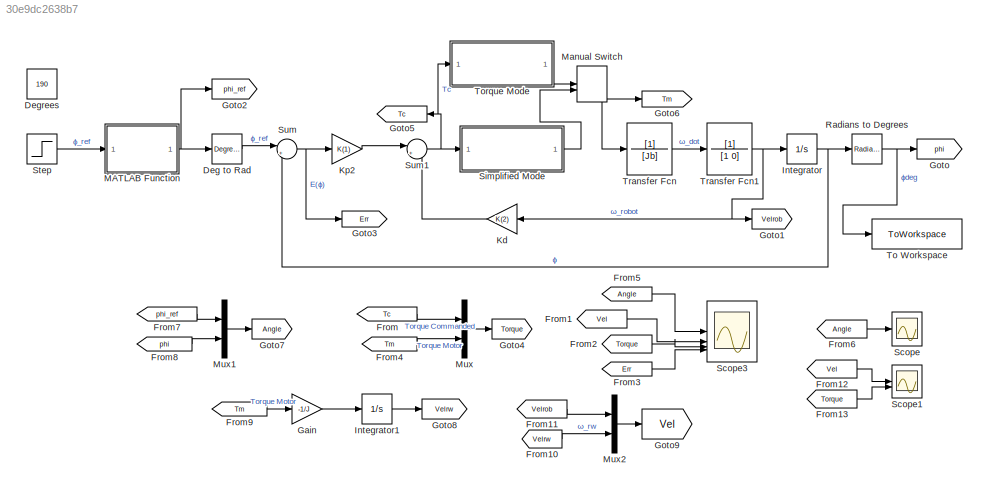
MODEL slx_30e9dc2638b7
KIND model
CONFIG AbsTol = auto
CONFIG EnableMultiTasking = off
CONFIG FixedStep = auto
CONFIG MaxStep = auto
CONFIG MinStep = auto
CONFIG RelTol = 1e-3
CONFIG SampleTimeConstraint = Unconstrained
CONFIG SolverName = VariableStepAuto
CONFIG StartTime = 0.0
CONFIG StopTime = 10
BLOCK [Reference] Deg to Rad  REF=simulink_extras/Transformations/Degrees to
Radians
  SourceBlock = simulink_extras/Transformations/Degrees to\nRadians
  SourceType = DegreesToRadians
BLOCK [Constant] Degrees
  Value = 190
BLOCK [From] From
  GotoTag = Tc
BLOCK [From] From1
  GotoTag = Vel
BLOCK [From] From10
  GotoTag = Velrw
BLOCK [From] From11
  GotoTag = Velrob
BLOCK [From] From12
  GotoTag = Vel
BLOCK [From] From13
  GotoTag = Torque
BLOCK [From] From2
  GotoTag = Torque
BLOCK [From] From3
  GotoTag = Err
BLOCK [From] From4
  GotoTag = Tm
BLOCK [From] From5
  GotoTag = Angle
BLOCK [From] From6
  GotoTag = Angle
BLOCK [From] From7
  GotoTag = phi_ref
BLOCK [From] From8
  GotoTag = phi
BLOCK [From] From9
  GotoTag = Tm
BLOCK [Gain] Gain
  Gain = -1/J
BLOCK [Goto] Goto
  GotoTag = phi
BLOCK [Goto] Goto1
  GotoTag = Velrob
BLOCK [Goto] Goto2
  GotoTag = phi_ref
BLOCK [Goto] Goto3
  GotoTag = Err
BLOCK [Goto] Goto4
  GotoTag = Torque
BLOCK [Goto] Goto5
  GotoTag = Tc
BLOCK [Goto] Goto6
  GotoTag = Tm
BLOCK [Goto] Goto7
  GotoTag = Angle
BLOCK [Goto] Goto8
  GotoTag = Velrw
BLOCK [Goto] Goto9
  GotoTag = Vel
BLOCK [Integrator] Integrator
BLOCK [Integrator] Integrator1
BLOCK [Gain] Kd
  Gain = K(2)
BLOCK [Gain] Kp2
  Gain = K(1)
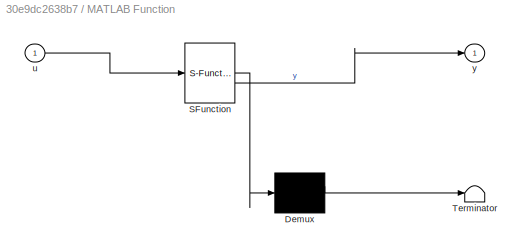
BLOCK [SubSystem] MATLAB Function
  ErrorFcn = Stateflow.Translate.translate
  PermitHierarchicalResolution = ExplicitOnly
  SFBlockType = MATLAB Function
  TreatAsAtomicUnit = on
BLOCK [Demux] MATLAB Function/ Demux 
  Outputs = 1
BLOCK [S-Function] MATLAB Function/ SFunction 
  EnableBusSupport = on
  FunctionName = sf_sfun
  PortCounts = [1 2]
  SFcnIsStateOwnerBlock = off
  SFunctionDeploymentMode = off
  Tag = Stateflow S-Function 2
BLOCK [Terminator] MATLAB Function/ Terminator 
BLOCK [Inport] MATLAB Function/u
BLOCK [Outport] MATLAB Function/y
BLOCK [ManualSwitch] Manual Switch
  CurrentSetting = 0
BLOCK [Mux] Mux
  DisplayOption = bar
  Inputs = 2
BLOCK [Mux] Mux1
  DisplayOption = bar
  Inputs = 2
BLOCK [Mux] Mux2
  DisplayOption = bar
  Inputs = 2
BLOCK [Reference] Radians to Degrees  REF=simulink_extras/Transformations/Radians
to Degrees
  SourceBlock = simulink_extras/Transformations/Radians\nto Degrees
  SourceType = RadiansToDegrees
BLOCK [Scope] Scope
  Floating = off
  NumInputPorts = 1
  ScopeSpecificationString = Simulink.scopes.TimeScopeBlockCfg('CurrentConfiguration', extmgr.ConfigurationSet(extmgr.Configuration('Core','General UI',true),extmgr.Configuration('Core','Source UI',true),extmgr.Configuration('Sources','WiredSimulink',true),extmgr.Configuration('Visuals','Time Domain',true,'SerializedDisplays',{struct('MinYLimReal','-27.04402','MaxYLimReal','243.3962','YLabelReal','ϕ (degrees)','MinYLimMag','0...<+1628ch>
BLOCK [Scope] Scope1
  Floating = off
  NumInputPorts = 2
  ScopeSpecificationString = Simulink.scopes.TimeScopeBlockCfg('CurrentConfiguration', extmgr.ConfigurationSet(extmgr.Configuration('Core','General UI',true),extmgr.Configuration('Core','Source UI',true),extmgr.Configuration('Sources','WiredSimulink',true,'DataLoggingVariableName','ScopeData1'),extmgr.Configuration('Visuals','Time Domain',true,'SerializedDisplays',{struct('MinYLimReal','-39.78384','MaxYLimReal','6.36053','YLa...<+2633ch>
BLOCK [Scope] Scope3
  Floating = off
  NumInputPorts = 4
  ScopeSpecificationString = Simulink.scopes.TimeScopeBlockCfg('CurrentConfiguration', extmgr.ConfigurationSet(extmgr.Configuration('Core','General UI',true),extmgr.Configuration('Core','Source UI',true),extmgr.Configuration('Sources','WiredSimulink',true,'DataLoggingVariableName','ScopeData3'),extmgr.Configuration('Visuals','Time Domain',true,'SerializedDisplays',{struct('MinYLimReal','-39.78384','MaxYLimReal','6.36053','YLa...<+3699ch>
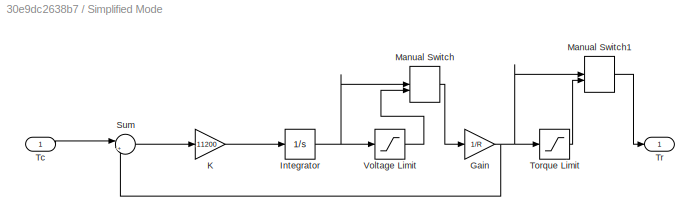
BLOCK [SubSystem] Simplified Mode
BLOCK [Gain] Simplified Mode/Gain
  Gain = 1/R
BLOCK [Integrator] Simplified Mode/Integrator
BLOCK [Gain] Simplified Mode/K
  Gain = 11200
BLOCK [ManualSwitch] Simplified Mode/Manual Switch
  CurrentSetting = 0
BLOCK [ManualSwitch] Simplified Mode/Manual Switch1
  CurrentSetting = 0
BLOCK [Sum] Simplified Mode/Sum
  Inputs = |+-
BLOCK [Inport] Simplified Mode/Tc
BLOCK [Saturate] Simplified Mode/Torque Limit
  LowerLimit = -Ktt
  UpperLimit = Ktt
BLOCK [Outport] Simplified Mode/Tr
BLOCK [Saturate] Simplified Mode/Voltage Limit
  LowerLimit = -11
  UpperLimit = 11
BLOCK [Step] Step
  After = 170
  SampleTime = 0
BLOCK [Sum] Sum
  Inputs = |+-
BLOCK [Sum] Sum1
  Inputs = |+-
BLOCK [ToWorkspace] To Workspace
  FixptAsFi = on
  MaxDataPoints = inf
  SampleTime = -1
  Save2DSignal = 2-D array (concatenate along first dimension)
  SaveFormat = Timeseries
  VariableName = simout
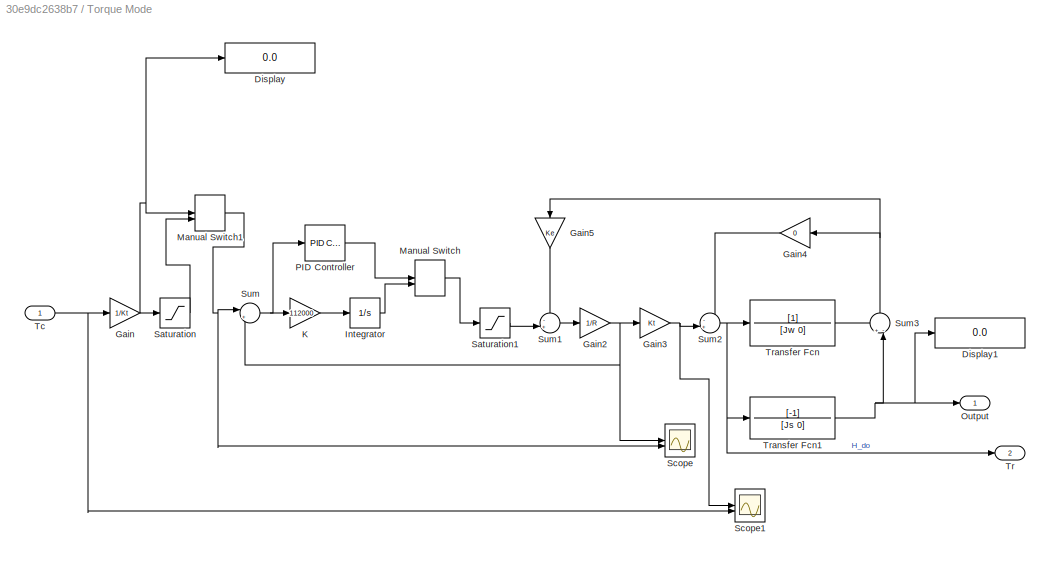
BLOCK [SubSystem] Torque Mode
BLOCK [Display] Torque Mode/Display
  Decimation = 1
BLOCK [Display] Torque Mode/Display1
  Decimation = 1
BLOCK [Gain] Torque Mode/Gain
  Gain = 1/Kt
BLOCK [Gain] Torque Mode/Gain2
  Gain = 1/R
BLOCK [Gain] Torque Mode/Gain3
  Gain = Kt
BLOCK [Gain] Torque Mode/Gain4
  Gain = 0
BLOCK [Gain] Torque Mode/Gain5
  Gain = Ke
  NameLocation = left
BLOCK [Integrator] Torque Mode/Integrator
BLOCK [Gain] Torque Mode/K
  Gain = 112000
BLOCK [ManualSwitch] Torque Mode/Manual Switch
  CurrentSetting = 0
BLOCK [ManualSwitch] Torque Mode/Manual Switch1
  CurrentSetting = 0
BLOCK [Outport] Torque Mode/Output
BLOCK [Reference] Torque Mode/PID Controller  REF=slpidlib/PID Controller
  LibrarySourceBlock = simulink/Continuous/PID Controller
  SourceBlock = slpidlib/PID Controller
  SourceType = PID 1dof
BLOCK [Saturate] Torque Mode/Saturation
  LowerLimit = -1
  UpperLimit = 1
BLOCK [Saturate] Torque Mode/Saturation1
  LowerLimit = -11
  UpperLimit = 11
BLOCK [Scope] Torque Mode/Scope
  Floating = off
  NumInputPorts = 2
  ScopeSpecificationString = Simulink.scopes.TimeScopeBlockCfg('CurrentConfiguration', extmgr.ConfigurationSet(extmgr.Configuration('Core','General UI',true),extmgr.Configuration('Core','Source UI',true),extmgr.Configuration('Sources','WiredSimulink',true,'DataLoggingVariableName','ScopeData1'),extmgr.Configuration('Visuals','Time Domain',true,'SerializedDisplays',{struct('MinYLimReal','-0.01852','MaxYLimReal','0.16667','YLab...<+1515ch>
BLOCK [Scope] Torque Mode/Scope1
  Floating = off
  NumInputPorts = 2
  ScopeSpecificationString = Simulink.scopes.TimeScopeBlockCfg('CurrentConfiguration', extmgr.ConfigurationSet(extmgr.Configuration('Core','General UI',true),extmgr.Configuration('Core','Source UI',true),extmgr.Configuration('Sources','WiredSimulink',true),extmgr.Configuration('Visuals','Time Domain',true,'SerializedDisplays',{struct('MinYLimReal','-0.00125','MaxYLimReal','0.01125','YLabelReal','','MinYLimMag','0.00000','MaxY...<+1454ch>
BLOCK [Sum] Torque Mode/Sum
  Inputs = |+-
BLOCK [Sum] Torque Mode/Sum1
  Inputs = -+|
BLOCK [Sum] Torque Mode/Sum2
  Inputs = -+|
BLOCK [Sum] Torque Mode/Sum3
  Inputs = +-|
  NameLocation = right
BLOCK [Inport] Torque Mode/Tc
BLOCK [Outport] Torque Mode/Tr
  Port = 2
BLOCK [TransferFcn] Torque Mode/Transfer Fcn
  Denominator = [Jw 0]
BLOCK [TransferFcn] Torque Mode/Transfer Fcn1
  Denominator = [Js 0]
  Numerator = [-1]
BLOCK [TransferFcn] Transfer Fcn
  Denominator = [Jb]
BLOCK [TransferFcn] Transfer Fcn1
  Denominator = [1 0]
LINE Deg to Rad:1 -> Sum:1
LINE From10:1 -> Mux2:2
LINE From11:1 -> Mux2:1
LINE From12:1 -> Scope1:1
LINE From13:1 -> Scope1:2
LINE From1:1 -> Scope3:2
LINE From2:1 -> Scope3:3
LINE From3:1 -> Scope3:4
LINE From4:1 -> Mux:2
LINE From5:1 -> Scope3:1
LINE From6:1 -> Scope:1
LINE From7:1 -> Mux1:1
LINE From8:1 -> Mux1:2
LINE From9:1 -> Gain:1
LINE From:1 -> Mux:1
LINE Gain:1 -> Integrator1:1
LINE Integrator1:1 -> Goto8:1
NET Integrator:1 -> Radians to Degrees:1, Sum:2
LINE Kd:1 -> Sum1:2
LINE Kp2:1 -> Sum1:1
NET MATLAB Function:1 -> Deg to Rad:1, Goto2:1
NET Manual Switch:1 -> Goto6:1, Transfer Fcn:1
LINE Mux1:1 -> Goto7:1
LINE Mux2:1 -> Goto9:1
LINE Mux:1 -> Goto4:1
NET Radians to Degrees:1 -> Goto:1, To Workspace:1
NET Simplified Mode/Gain:1 -> Simplified Mode/Manual Switch1:1, Simplified Mode/Sum:2, Simplified Mode/Torque Limit:1
NET Simplified Mode/Integrator:1 -> Simplified Mode/Manual Switch:1, Simplified Mode/Voltage Limit:1
LINE Simplified Mode/K:1 -> Simplified Mode/Integrator:1
LINE Simplified Mode/Manual Switch1:1 -> Simplified Mode/Tr:1
LINE Simplified Mode/Manual Switch:1 -> Simplified Mode/Gain:1
LINE Simplified Mode/Sum:1 -> Simplified Mode/K:1
LINE Simplified Mode/Tc:1 -> Simplified Mode/Sum:1
LINE Simplified Mode/Torque Limit:1 -> Simplified Mode/Manual Switch1:2
LINE Simplified Mode/Voltage Limit:1 -> Simplified Mode/Manual Switch:2
LINE Simplified Mode:1 -> Manual Switch:2
LINE Step:1 -> MATLAB Function:1
NET Sum1:1 -> Goto5:1, Simplified Mode:1, Torque Mode:1
NET Sum:1 -> Goto3:1, Kp2:1
NET Torque Mode/Gain2:1 -> Torque Mode/Gain3:1, Torque Mode/Scope:1, Torque Mode/Sum:2
NET Torque Mode/Gain3:1 -> Torque Mode/Scope1:1, Torque Mode/Sum2:2
LINE Torque Mode/Gain4:1 -> Torque Mode/Sum2:1
LINE Torque Mode/Gain5:1 -> Torque Mode/Sum1:1
NET Torque Mode/Gain:1 -> Torque Mode/Display:1, Torque Mode/Manual Switch1:1, Torque Mode/Saturation:1
LINE Torque Mode/Integrator:1 -> Torque Mode/Manual Switch:2
LINE Torque Mode/K:1 -> Torque Mode/Integrator:1
NET Torque Mode/Manual Switch1:1 -> Torque Mode/Scope:2, Torque Mode/Sum:1
LINE Torque Mode/Manual Switch:1 -> Torque Mode/Saturation1:1
LINE Torque Mode/PID Controller:1 -> Torque Mode/Manual Switch:1
LINE Torque Mode/Saturation1:1 -> Torque Mode/Sum1:2
LINE Torque Mode/Saturation:1 -> Torque Mode/Manual Switch1:2
LINE Torque Mode/Sum1:1 -> Torque Mode/Gain2:1
NET Torque Mode/Sum2:1 -> Torque Mode/Tr:1, Torque Mode/Transfer Fcn1:1, Torque Mode/Transfer Fcn:1
NET Torque Mode/Sum3:1 -> Torque Mode/Gain4:1, Torque Mode/Gain5:1
NET Torque Mode/Sum:1 -> Torque Mode/K:1, Torque Mode/PID Controller:1
NET Torque Mode/Tc:1 -> Torque Mode/Gain:1, Torque Mode/Scope1:2
NET Torque Mode/Transfer Fcn1:1 -> Torque Mode/Display1:1, Torque Mode/Output:1, Torque Mode/Sum3:2
LINE Torque Mode/Transfer Fcn:1 -> Torque Mode/Sum3:1
LINE Torque Mode:2 -> Manual Switch:1
NET Transfer Fcn1:1 -> Goto1:1, Integrator:1, Kd:1
LINE Transfer Fcn:1 -> Transfer Fcn1:1
note: NET lines group one-source signal fan-out (src -> all destinations, sorted); 1:1 wires keep LINE
CHART MATLAB Function states=1 transitions=1
  STATE_LABEL 'eML_blk_kernel()'
  STATE_LABEL 'SCRIPT:\nfunction y = wrapTo180(u)\n% Función que normaliza un ángulo entre -180 y 180 grados\n    y = mod(u + 180, 360) - 180;\nend\n'
CHART  states=0 transitions=0
